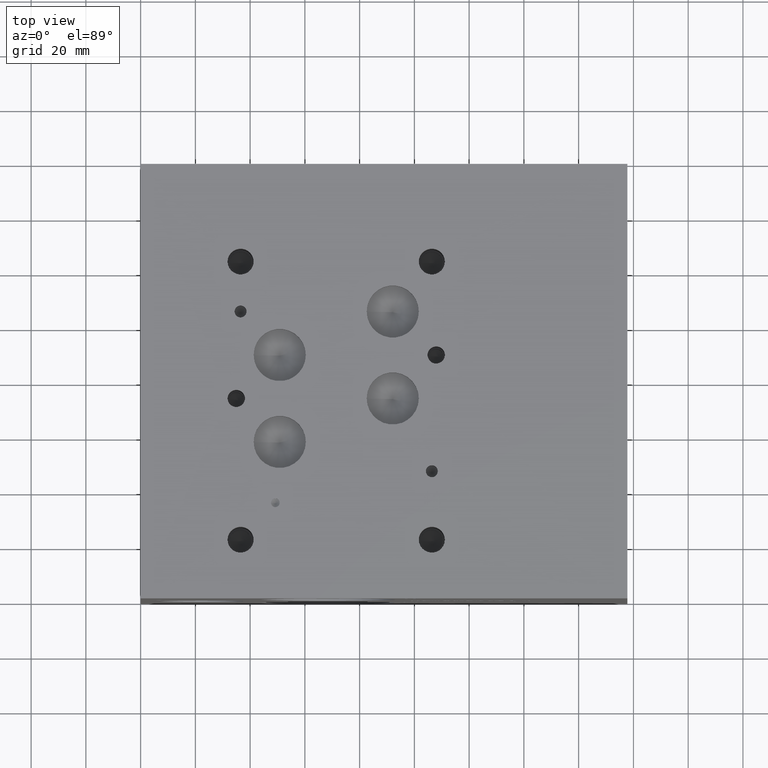
[diagram: clean part render]
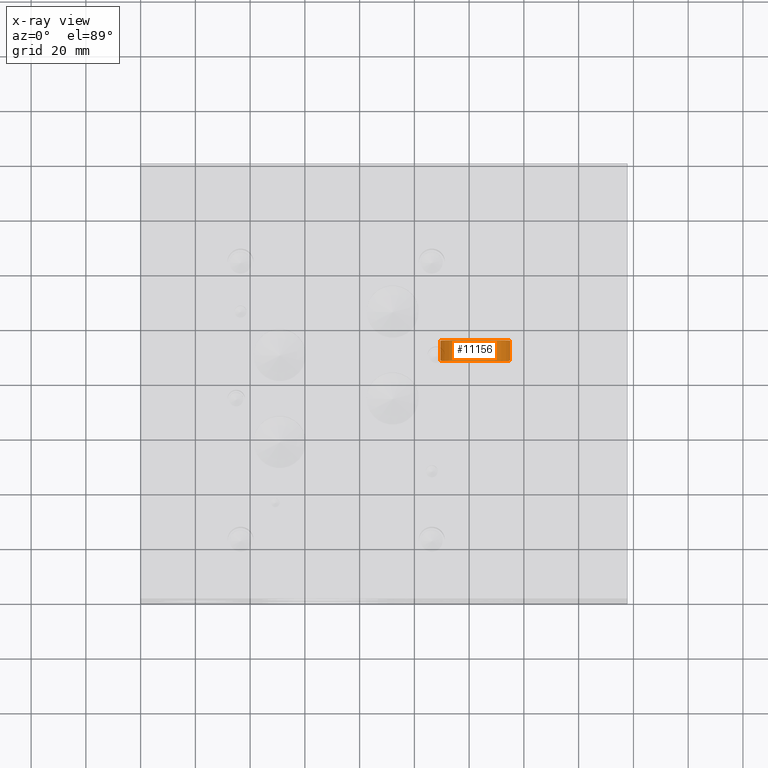
[diagram: x-ray — body ghosted, one internal face saturated and labeled with its STEP entity id]
A machine part, top view, then the same camera in x-ray: the body is ghosted and one INTERNAL B-rep face — a face not visible from any outside direction — is saturated and labeled: STEP entity #11156.
In plain terms, the highlighted cylindrical surface (bore or boss wall) has radius 12.7 mm, axis along (0, -1, 0).
Its self-contained STEP definition (entity closure, byte-faithful):
#69=CYLINDRICAL_SURFACE('',#11688,12.7);
#182=CIRCLE('',#11686,12.7);
#183=CIRCLE('',#11687,12.7);
#184=CIRCLE('',#11689,12.7);
#185=CIRCLE('',#11690,12.7);
#1273=FACE_OUTER_BOUND('',#1911,.T.);
#1911=EDGE_LOOP('',(#9219,#9220,#9221,#9222,#9223,#9224));
#3042=LINE('',#18525,#4103);
#4103=VECTOR('',#13750,12.7);
#5040=VERTEX_POINT('',#18519);
#5041=VERTEX_POINT('',#18520);
#5042=VERTEX_POINT('',#18524);
#5043=VERTEX_POINT('',#18526);
#6506=EDGE_CURVE('',#5040,#5041,#182,.T.);
#6507=EDGE_CURVE('',#5041,#5040,#183,.T.);
#6508=EDGE_CURVE('',#5041,#5042,#3042,.T.);
#6509=EDGE_CURVE('',#5042,#5043,#184,.T.);
#6510=EDGE_CURVE('',#5043,#5042,#185,.T.);
#9219=ORIENTED_EDGE('',*,*,#6506,.F.);
#9220=ORIENTED_EDGE('',*,*,#6507,.F.);
#9221=ORIENTED_EDGE('',*,*,#6508,.T.);
#9222=ORIENTED_EDGE('',*,*,#6509,.T.);
#9223=ORIENTED_EDGE('',*,*,#6510,.T.);
#9224=ORIENTED_EDGE('',*,*,#6508,.F.);
#11156=ADVANCED_FACE('',(#1273),#69,.F.);
#11686=AXIS2_PLACEMENT_3D('',#18521,#13744,#13745);
#11687=AXIS2_PLACEMENT_3D('',#18522,#13746,#13747);
#11688=AXIS2_PLACEMENT_3D('',#18523,#13748,#13749);
#11689=AXIS2_PLACEMENT_3D('',#18527,#13751,#13752);
#11690=AXIS2_PLACEMENT_3D('',#18528,#13753,#13754);
#13744=DIRECTION('center_axis',(0.,-1.,0.));
#13745=DIRECTION('ref_axis',(1.,0.,0.));
#13746=DIRECTION('center_axis',(0.,-1.,0.));
#13747=DIRECTION('ref_axis',(1.,0.,0.));
#13748=DIRECTION('center_axis',(0.,-1.,0.));
#13749=DIRECTION('ref_axis',(1.,0.,0.));
#13750=DIRECTION('',(0.,-1.,0.));
#13751=DIRECTION('center_axis',(0.,-1.,0.));
#13752=DIRECTION('ref_axis',(1.,0.,0.));
#13753=DIRECTION('center_axis',(0.,-1.,0.));
#13754=DIRECTION('ref_axis',(1.,0.,0.));
#18519=CARTESIAN_POINT('',(134.9248,95.7072,30.1752));
#18520=CARTESIAN_POINT('',(109.5248,95.7072,30.1752));
#18521=CARTESIAN_POINT('Origin',(122.2248,95.7072,30.1752));
#18522=CARTESIAN_POINT('Origin',(122.2248,95.7072,30.1752));
#18523=CARTESIAN_POINT('Origin',(122.2248,92.0410258,30.1752));
#18524=CARTESIAN_POINT('',(109.5248,88.3748516,30.1752));
#18525=CARTESIAN_POINT('',(109.5248,92.0410258,30.1752));
#18526=CARTESIAN_POINT('',(134.9248,88.3748516,30.1752));
#18527=CARTESIAN_POINT('Origin',(122.2248,88.3748516,30.1752));
#18528=CARTESIAN_POINT('Origin',(122.2248,88.3748516,30.1752));